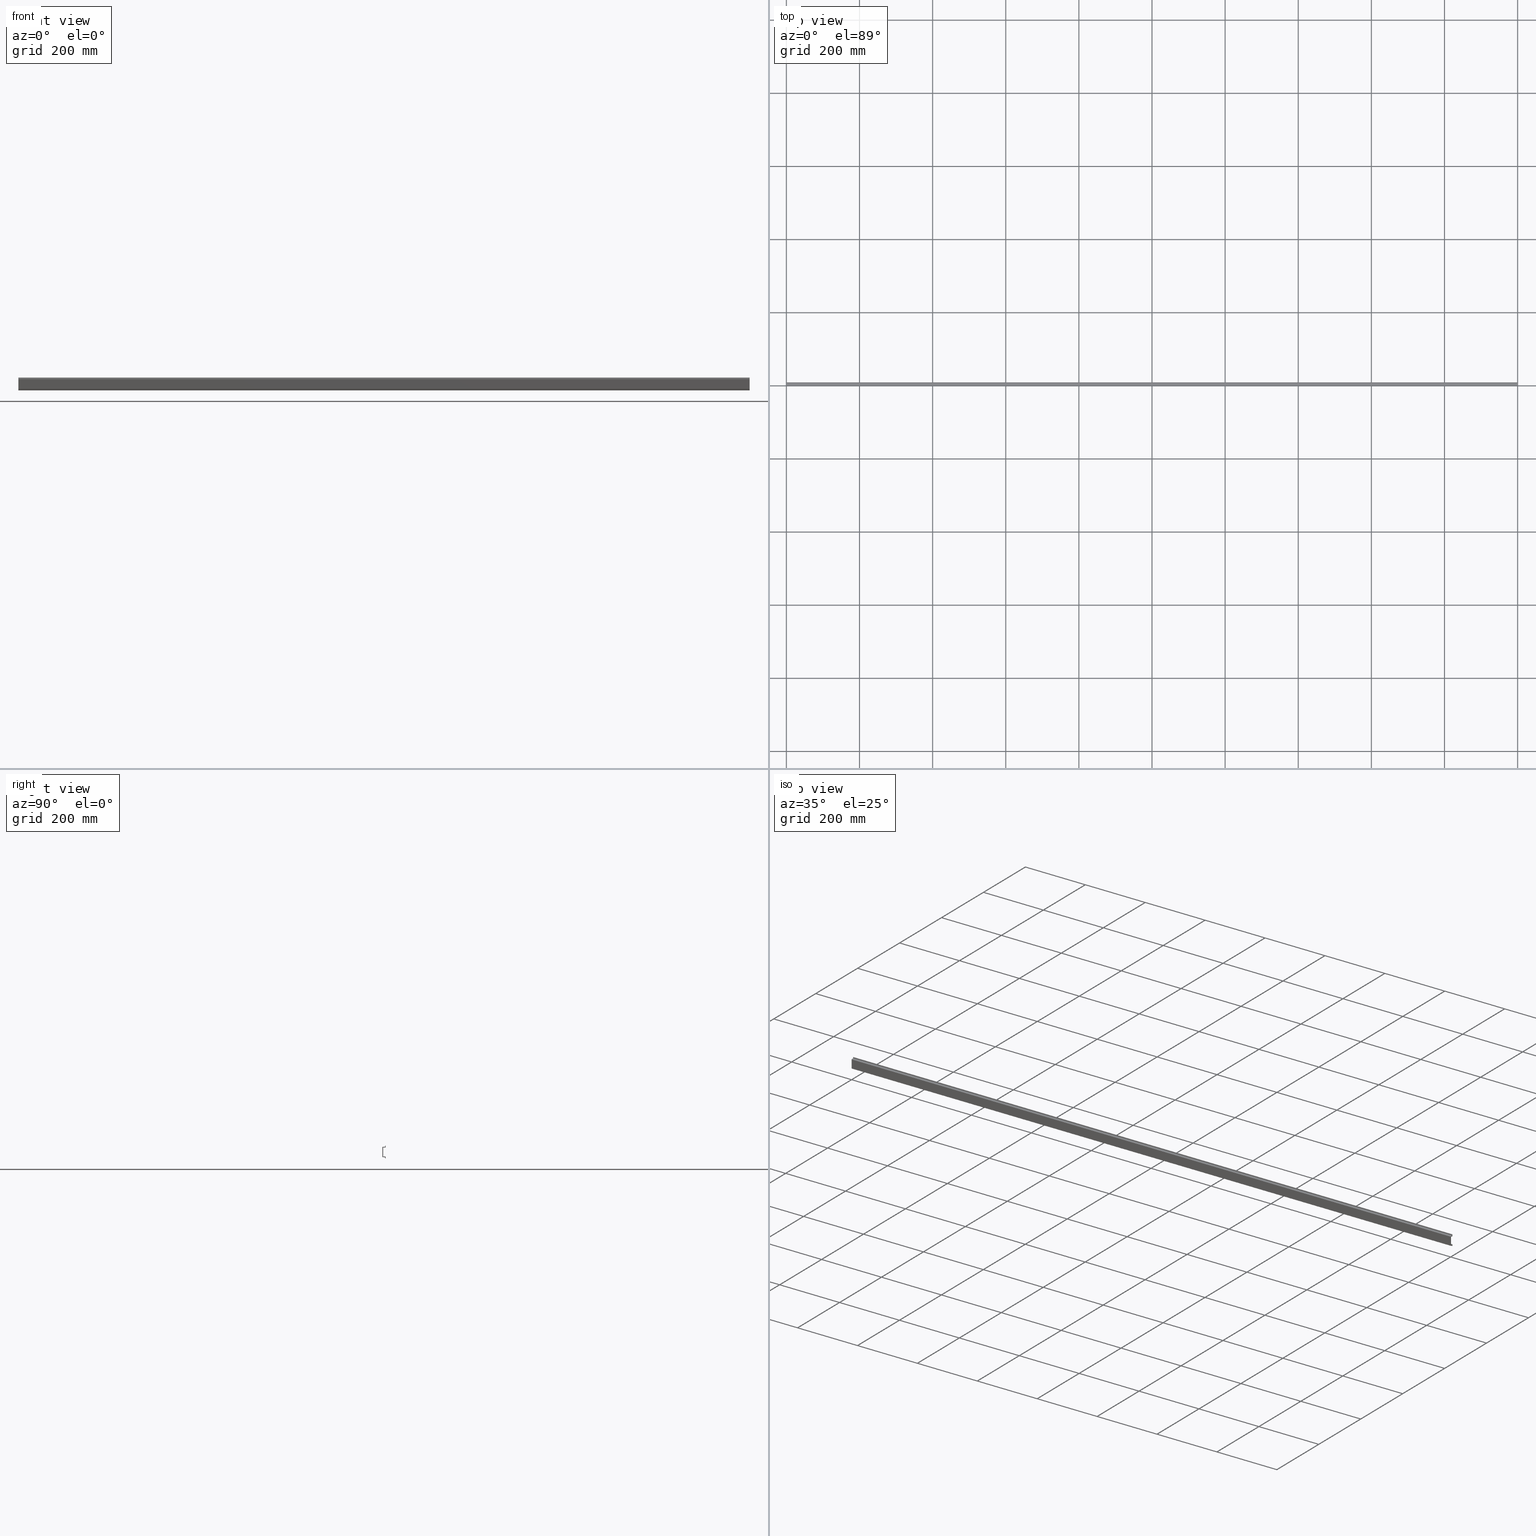
[diagram: canonical four-view strip — front | top / right | iso, engineering-drawing reading convention]
A machine part, canonical four-view strip (front | top / right | iso — engineering-drawing reading convention). The complete STEP part file that produces these views, byte-faithful:
ISO-10303-21;
HEADER;
FILE_DESCRIPTION (( 'STEP AP203' ),
    '1' );
FILE_NAME ('35x7,5 Al�minyum D�z Montaj Ray-2m.STEP',
    '2019-03-27T11:40:10',
    ( '' ),
    ( '' ),
    'SwSTEP 2.0',
    'SolidWorks 2011',
    '' );
FILE_SCHEMA (( 'CONFIG_CONTROL_DESIGN' ));
ENDSEC;

DATA;
#1 = PRODUCT ( '35x7,5 Al�minyum D�z Montaj Ray-2m', '35x7,5 Al�minyum D�z Montaj Ray-2m', '', ( #614 ) ) ;
#2 = EDGE_CURVE ( 'NONE', #101, #120, #145, .T. ) ;
#3 = EDGE_CURVE ( 'NONE', #166, #135, #171, .T. ) ;
#4 = EDGE_CURVE ( 'NONE', #142, #117, #306, .T. ) ;
#5 = EDGE_CURVE ( 'NONE', #166, #119, #288, .T. ) ;
#6 = EDGE_CURVE ( 'NONE', #134, #138, #294, .T. ) ;
#7 = EDGE_CURVE ( 'NONE', #134, #166, #675, .T. ) ;
#8 = EDGE_CURVE ( 'NONE', #135, #144, #670, .T. ) ;
#9 = EDGE_CURVE ( 'NONE', #146, #181, #290, .T. ) ;
#10 = EDGE_CURVE ( 'NONE', #128, #165, #704, .T. ) ;
#11 = EDGE_CURVE ( 'NONE', #101, #173, #720, .T. ) ;
#12 = EDGE_CURVE ( 'NONE', #170, #142, #307, .T. ) ;
#13 = EDGE_CURVE ( 'NONE', #100, #129, #345, .T. ) ;
#14 = EDGE_CURVE ( 'NONE', #173, #121, #328, .T. ) ;
#15 = EDGE_CURVE ( 'NONE', #167, #111, #683, .T. ) ;
#16 = EDGE_CURVE ( 'NONE', #165, #134, #308, .T. ) ;
#17 = EDGE_CURVE ( 'NONE', #138, #119, #715, .T. ) ;
#18 = EDGE_CURVE ( 'NONE', #148, #139, #309, .T. ) ;
#19 = EDGE_CURVE ( 'NONE', #137, #155, #680, .T. ) ;
#20 = EDGE_CURVE ( 'NONE', #146, #148, #685, .T. ) ;
#21 = EDGE_CURVE ( 'NONE', #111, #138, #338, .T. ) ;
#22 = EDGE_CURVE ( 'NONE', #130, #129, #310, .T. ) ;
#23 = EDGE_CURVE ( 'NONE', #117, #181, #340, .T. ) ;
#24 = EDGE_CURVE ( 'NONE', #120, #121, #721, .T. ) ;
#25 = EDGE_CURVE ( 'NONE', #169, #117, #339, .T. ) ;
#26 = EDGE_CURVE ( 'NONE', #181, #139, #709, .T. ) ;
#27 = EDGE_CURVE ( 'NONE', #130, #101, #356, .T. ) ;
#28 = EDGE_CURVE ( 'NONE', #173, #128, #378, .T. ) ;
#29 = EDGE_CURVE ( 'NONE', #165, #111, #393, .T. ) ;
#30 = EDGE_CURVE ( 'NONE', #155, #142, #361, .T. ) ;
#31 = EDGE_CURVE ( 'NONE', #170, #169, #350, .T. ) ;
#32 = EDGE_CURVE ( 'NONE', #169, #146, #365, .T. ) ;
#33 = EDGE_CURVE ( 'NONE', #125, #100, #367, .T. ) ;
#34 = EDGE_CURVE ( 'NONE', #121, #167, #387, .T. ) ;
#35 = EDGE_CURVE ( 'NONE', #119, #137, #391, .T. ) ;
#36 = EDGE_CURVE ( 'NONE', #129, #120, #369, .T. ) ;
#37 = EDGE_CURVE ( 'NONE', #144, #170, #392, .T. ) ;
#38 = EDGE_CURVE ( 'NONE', #149, #163, #699, .T. ) ;
#39 = EDGE_CURVE ( 'NONE', #125, #130, #371, .T. ) ;
#40 = EDGE_CURVE ( 'NONE', #135, #137, #399, .T. ) ;
#41 = EDGE_CURVE ( 'NONE', #183, #180, #418, .T. ) ;
#42 = EDGE_CURVE ( 'NONE', #180, #132, #724, .T. ) ;
#43 = EDGE_CURVE ( 'NONE', #148, #164, #403, .T. ) ;
#44 = EDGE_CURVE ( 'NONE', #128, #167, #438, .T. ) ;
#45 = EDGE_CURVE ( 'NONE', #144, #155, #409, .T. ) ;
#46 = APPROVAL ( #626, 'BEL�RT�LMEM��' ) ;
#47 = ADVANCED_FACE ( 'NONE', ( #405 ), #400, .F. ) ;
#48 = CC_DESIGN_PERSON_AND_ORGANIZATION_ASSIGNMENT ( #640, #643, ( #746 ) ) ;
#49 = EDGE_CURVE ( 'NONE', #139, #149, #410, .T. ) ;
#50 = EDGE_CURVE ( 'NONE', #163, #180, #426, .T. ) ;
#51 = EDGE_CURVE ( 'NONE', #176, #132, #412, .T. ) ;
#52 = EDGE_CURVE ( 'NONE', #132, #116, #420, .T. ) ;
#53 = EDGE_CURVE ( 'NONE', #168, #125, #429, .T. ) ;
#54 = EDGE_CURVE ( 'NONE', #116, #150, #679, .T. ) ;
#55 = EDGE_CURVE ( 'NONE', #168, #150, #432, .T. ) ;
#56 = ADVANCED_FACE ( 'NONE', ( #439 ), #489, .T. ) ;
#57 = EDGE_CURVE ( 'NONE', #160, #183, #459, .T. ) ;
#58 = ADVANCED_FACE ( 'NONE', ( #480 ), #483, .F. ) ;
#59 = EDGE_CURVE ( 'NONE', #176, #186, #457, .T. ) ;
#60 = ADVANCED_FACE ( 'NONE', ( #486 ), #477, .F. ) ;
#61 = ADVANCED_FACE ( 'NONE', ( #460 ), #488, .F. ) ;
#62 = ADVANCED_FACE ( 'NONE', ( #449 ), #479, .T. ) ;
#63 = EDGE_CURVE ( 'NONE', #150, #100, #470, .T. ) ;
#64 = ADVANCED_FACE ( 'NONE', ( #463 ), #458, .F. ) ;
#65 = EDGE_CURVE ( 'NONE', #186, #168, #773, .T. ) ;
#66 = ADVANCED_FACE ( 'NONE', ( #450 ), #487, .T. ) ;
#67 = ADVANCED_FACE ( 'NONE', ( #472 ), #490, .T. ) ;
#68 = ADVANCED_FACE ( 'NONE', ( #533 ), #512, .F. ) ;
#69 = EDGE_CURVE ( 'NONE', #183, #176, #774, .T. ) ;
#70 = EDGE_CURVE ( 'NONE', #186, #116, #504, .T. ) ;
#71 = EDGE_CURVE ( 'NONE', #160, #163, #493, .T. ) ;
#72 = EDGE_CURVE ( 'NONE', #164, #149, #494, .T. ) ;
#73 = ADVANCED_FACE ( 'NONE', ( #515 ), #508, .F. ) ;
#74 = ADVANCED_FACE ( 'NONE', ( #530 ), #527, .F. ) ;
#75 = ADVANCED_FACE ( 'NONE', ( #509 ), #529, .F. ) ;
#76 = EDGE_CURVE ( 'NONE', #164, #160, #780, .T. ) ;
#77 = ADVANCED_FACE ( 'NONE', ( #521 ), #516, .F. ) ;
#78 = ADVANCED_FACE ( 'NONE', ( #534 ), #540, .F. ) ;
#79 = ADVANCED_FACE ( 'NONE', ( #501 ), #520, .F. ) ;
#80 = PRODUCT_DEFINITION ( 'Bilinmeyen', '', #746, #99 ) ;
#81 = ADVANCED_FACE ( 'NONE', ( #577 ), #496, .F. ) ;
#82 = ADVANCED_FACE ( 'NONE', ( #581 ), #560, .F. ) ;
#83 = ADVANCED_FACE ( 'NONE', ( #561 ), #564, .F. ) ;
#84 = ADVANCED_FACE ( 'NONE', ( #570 ), #578, .F. ) ;
#85 = CC_DESIGN_PERSON_AND_ORGANIZATION_ASSIGNMENT ( #639, #611, ( #1 ) ) ;
#86 = APPROVAL ( #619, 'BEL�RT�LMEM��' ) ;
#87 = CC_DESIGN_PERSON_AND_ORGANIZATION_ASSIGNMENT ( #622, #629, ( #80 ) ) ;
#88 = ADVANCED_FACE ( 'NONE', ( #575 ), #554, .T. ) ;
#89 = ADVANCED_FACE ( 'NONE', ( #582 ), #579, .F. ) ;
#90 = CC_DESIGN_DATE_AND_TIME_ASSIGNMENT ( #631, #624, ( #80 ) ) ;
#91 = CC_DESIGN_DATE_AND_TIME_ASSIGNMENT ( #655, #650, ( #761 ) ) ;
#92 = PRODUCT_RELATED_PRODUCT_CATEGORY ( 'detail', '', ( #1 ) ) ;
#93 = CC_DESIGN_PERSON_AND_ORGANIZATION_ASSIGNMENT ( #649, #652, ( #761 ) ) ;
#94 = APPROVAL ( #660, 'BEL�RT�LMEM��' ) ;
#95 = CC_DESIGN_PERSON_AND_ORGANIZATION_ASSIGNMENT ( #644, #645, ( #746 ) ) ;
#96 = MANIFOLD_SOLID_BREP ( 'Y�kseklik-Ekstr�zyon1', #672 ) ;
#97 = UNCERTAINTY_MEASURE_WITH_UNIT (LENGTH_MEASURE( 1.000000000000000100E-005 ), #615, 'distance_accuracy_value', 'NONE');
#98 = PRODUCT_DEFINITION_SHAPE ( 'NONE', 'NONE',  #80 ) ;
#99 = DESIGN_CONTEXT ( 'detailed design', #662, 'design' ) ;
#100 = VERTEX_POINT ( 'NONE', #573 ) ;
#101 = VERTEX_POINT ( 'NONE', #556 ) ;
#102 = EDGE_LOOP ( 'NONE', ( #194, #197, #260, #200 ) ) ;
#103 = EDGE_LOOP ( 'NONE', ( #174, #151, #201, #172 ) ) ;
#104 = EDGE_LOOP ( 'NONE', ( #162, #184, #161, #152 ) ) ;
#105 = EDGE_LOOP ( 'NONE', ( #231, #233, #237, #256 ) ) ;
#106 = EDGE_LOOP ( 'NONE', ( #143, #179, #204, #187 ) ) ;
#107 = EDGE_LOOP ( 'NONE', ( #159, #213, #211, #217 ) ) ;
#108 = EDGE_LOOP ( 'NONE', ( #195, #154, #206, #157 ) ) ;
#109 = EDGE_LOOP ( 'NONE', ( #230, #255, #268, #238, #269, #227, #252, #270, #226, #247, #259, #234, #236, #242, #246, #257, #240, #258, #239, #232 ) ) ;
#110 = EDGE_LOOP ( 'NONE', ( #253, #212, #225, #207 ) ) ;
#111 = VERTEX_POINT ( 'NONE', #549 ) ;
#112 = EDGE_LOOP ( 'NONE', ( #182, #192, #175, #177 ) ) ;
#113 = EDGE_LOOP ( 'NONE', ( #249, #224, #245, #243 ) ) ;
#114 = EDGE_LOOP ( 'NONE', ( #215, #222, #223, #267 ) ) ;
#115 = EDGE_LOOP ( 'NONE', ( #199, #244, #241, #220 ) ) ;
#116 = VERTEX_POINT ( 'NONE', #596 ) ;
#117 = VERTEX_POINT ( 'NONE', #557 ) ;
#118 = EDGE_LOOP ( 'NONE', ( #208, #235, #221, #198 ) ) ;
#119 = VERTEX_POINT ( 'NONE', #558 ) ;
#120 = VERTEX_POINT ( 'NONE', #569 ) ;
#121 = VERTEX_POINT ( 'NONE', #580 ) ;
#122 = EDGE_LOOP ( 'NONE', ( #265, #251, #248, #254, #263, #264, #292, #277, #279, #301, #305, #291, #280, #284, #289, #276, #278, #286, #283, #296 ) ) ;
#123 = EDGE_LOOP ( 'NONE', ( #156, #147, #185, #141 ) ) ;
#124 = EDGE_LOOP ( 'NONE', ( #219, #228, #202, #266 ) ) ;
#125 = VERTEX_POINT ( 'NONE', #584 ) ;
#126 = EDGE_LOOP ( 'NONE', ( #214, #205, #216, #262 ) ) ;
#127 = EDGE_LOOP ( 'NONE', ( #196, #158, #210, #193 ) ) ;
#128 = VERTEX_POINT ( 'NONE', #565 ) ;
#129 = VERTEX_POINT ( 'NONE', #544 ) ;
#130 = VERTEX_POINT ( 'NONE', #567 ) ;
#131 = EDGE_LOOP ( 'NONE', ( #209, #140, #188, #153 ) ) ;
#132 = VERTEX_POINT ( 'NONE', #568 ) ;
#133 = EDGE_LOOP ( 'NONE', ( #191, #218, #178, #203 ) ) ;
#134 = VERTEX_POINT ( 'NONE', #585 ) ;
#135 = VERTEX_POINT ( 'NONE', #586 ) ;
#136 = EDGE_LOOP ( 'NONE', ( #229, #271, #261, #250 ) ) ;
#137 = VERTEX_POINT ( 'NONE', #587 ) ;
#138 = VERTEX_POINT ( 'NONE', #541 ) ;
#139 = VERTEX_POINT ( 'NONE', #572 ) ;
#140 = ORIENTED_EDGE ( 'NONE', *, *, #5, .F. ) ;
#141 = ORIENTED_EDGE ( 'NONE', *, *, #22, .T. ) ;
#142 = VERTEX_POINT ( 'NONE', #593 ) ;
#143 = ORIENTED_EDGE ( 'NONE', *, *, #21, .T. ) ;
#144 = VERTEX_POINT ( 'NONE', #595 ) ;
#145 = LINE ( 'NONE', #293, #671 ) ;
#146 = VERTEX_POINT ( 'NONE', #542 ) ;
#147 = ORIENTED_EDGE ( 'NONE', *, *, #2, .F. ) ;
#148 = VERTEX_POINT ( 'NONE', #588 ) ;
#149 = VERTEX_POINT ( 'NONE', #590 ) ;
#150 = VERTEX_POINT ( 'NONE', #546 ) ;
#151 = ORIENTED_EDGE ( 'NONE', *, *, #22, .F. ) ;
#152 = ORIENTED_EDGE ( 'NONE', *, *, #44, .T. ) ;
#153 = ORIENTED_EDGE ( 'NONE', *, *, #6, .T. ) ;
#154 = ORIENTED_EDGE ( 'NONE', *, *, #40, .F. ) ;
#155 = VERTEX_POINT ( 'NONE', #606 ) ;
#156 = ORIENTED_EDGE ( 'NONE', *, *, #36, .T. ) ;
#157 = ORIENTED_EDGE ( 'NONE', *, *, #5, .T. ) ;
#158 = ORIENTED_EDGE ( 'NONE', *, *, #45, .F. ) ;
#159 = ORIENTED_EDGE ( 'NONE', *, *, #30, .T. ) ;
#160 = VERTEX_POINT ( 'NONE', #543 ) ;
#161 = ORIENTED_EDGE ( 'NONE', *, *, #10, .F. ) ;
#162 = ORIENTED_EDGE ( 'NONE', *, *, #15, .T. ) ;
#163 = VERTEX_POINT ( 'NONE', #594 ) ;
#164 = VERTEX_POINT ( 'NONE', #548 ) ;
#165 = VERTEX_POINT ( 'NONE', #620 ) ;
#166 = VERTEX_POINT ( 'NONE', #634 ) ;
#167 = VERTEX_POINT ( 'NONE', #603 ) ;
#168 = VERTEX_POINT ( 'NONE', #600 ) ;
#169 = VERTEX_POINT ( 'NONE', #604 ) ;
#170 = VERTEX_POINT ( 'NONE', #637 ) ;
#171 = LINE ( 'NONE', #189, #667 ) ;
#172 = ORIENTED_EDGE ( 'NONE', *, *, #33, .T. ) ;
#173 = VERTEX_POINT ( 'NONE', #635 ) ;
#174 = ORIENTED_EDGE ( 'NONE', *, *, #13, .T. ) ;
#175 = ORIENTED_EDGE ( 'NONE', *, *, #11, .F. ) ;
#176 = VERTEX_POINT ( 'NONE', #613 ) ;
#177 = ORIENTED_EDGE ( 'NONE', *, *, #2, .T. ) ;
#178 = ORIENTED_EDGE ( 'NONE', *, *, #28, .F. ) ;
#179 = ORIENTED_EDGE ( 'NONE', *, *, #6, .F. ) ;
#180 = VERTEX_POINT ( 'NONE', #618 ) ;
#181 = VERTEX_POINT ( 'NONE', #607 ) ;
#182 = ORIENTED_EDGE ( 'NONE', *, *, #24, .T. ) ;
#183 = VERTEX_POINT ( 'NONE', #608 ) ;
#184 = ORIENTED_EDGE ( 'NONE', *, *, #29, .F. ) ;
#185 = ORIENTED_EDGE ( 'NONE', *, *, #27, .F. ) ;
#186 = VERTEX_POINT ( 'NONE', #630 ) ;
#187 = ORIENTED_EDGE ( 'NONE', *, *, #29, .T. ) ;
#188 = ORIENTED_EDGE ( 'NONE', *, *, #7, .F. ) ;
#189 = CARTESIAN_POINT ( 'NONE',  ( 2000.000000000000000, 6.494307887199402000, -0.9999999999998898700 ) ) ;
#190 = DIRECTION ( 'NONE',  ( -0.0000000000000000000, 1.000000000000000000, -0.0000000000000000000 ) ) ;
#191 = ORIENTED_EDGE ( 'NONE', *, *, #34, .T. ) ;
#192 = ORIENTED_EDGE ( 'NONE', *, *, #14, .F. ) ;
#193 = ORIENTED_EDGE ( 'NONE', *, *, #40, .T. ) ;
#194 = ORIENTED_EDGE ( 'NONE', *, *, #23, .T. ) ;
#195 = ORIENTED_EDGE ( 'NONE', *, *, #35, .T. ) ;
#196 = ORIENTED_EDGE ( 'NONE', *, *, #19, .T. ) ;
#197 = ORIENTED_EDGE ( 'NONE', *, *, #9, .F. ) ;
#198 = ORIENTED_EDGE ( 'NONE', *, *, #72, .T. ) ;
#199 = ORIENTED_EDGE ( 'NONE', *, *, #42, .T. ) ;
#200 = ORIENTED_EDGE ( 'NONE', *, *, #25, .T. ) ;
#201 = ORIENTED_EDGE ( 'NONE', *, *, #39, .F. ) ;
#202 = ORIENTED_EDGE ( 'NONE', *, *, #43, .F. ) ;
#203 = ORIENTED_EDGE ( 'NONE', *, *, #14, .T. ) ;
#204 = ORIENTED_EDGE ( 'NONE', *, *, #16, .F. ) ;
#205 = ORIENTED_EDGE ( 'NONE', *, *, #25, .F. ) ;
#206 = ORIENTED_EDGE ( 'NONE', *, *, #3, .F. ) ;
#207 = ORIENTED_EDGE ( 'NONE', *, *, #51, .T. ) ;
#208 = ORIENTED_EDGE ( 'NONE', *, *, #38, .T. ) ;
#209 = ORIENTED_EDGE ( 'NONE', *, *, #17, .T. ) ;
#210 = ORIENTED_EDGE ( 'NONE', *, *, #8, .F. ) ;
#211 = ORIENTED_EDGE ( 'NONE', *, *, #37, .F. ) ;
#212 = ORIENTED_EDGE ( 'NONE', *, *, #70, .F. ) ;
#213 = ORIENTED_EDGE ( 'NONE', *, *, #12, .F. ) ;
#214 = ORIENTED_EDGE ( 'NONE', *, *, #4, .T. ) ;
#215 = ORIENTED_EDGE ( 'NONE', *, *, #50, .T. ) ;
#216 = ORIENTED_EDGE ( 'NONE', *, *, #31, .F. ) ;
#217 = ORIENTED_EDGE ( 'NONE', *, *, #45, .T. ) ;
#218 = ORIENTED_EDGE ( 'NONE', *, *, #44, .F. ) ;
#219 = ORIENTED_EDGE ( 'NONE', *, *, #49, .T. ) ;
#220 = ORIENTED_EDGE ( 'NONE', *, *, #41, .T. ) ;
#221 = ORIENTED_EDGE ( 'NONE', *, *, #76, .F. ) ;
#222 = ORIENTED_EDGE ( 'NONE', *, *, #41, .F. ) ;
#223 = ORIENTED_EDGE ( 'NONE', *, *, #57, .F. ) ;
#224 = ORIENTED_EDGE ( 'NONE', *, *, #55, .F. ) ;
#225 = ORIENTED_EDGE ( 'NONE', *, *, #59, .F. ) ;
#226 = ORIENTED_EDGE ( 'NONE', *, *, #8, .T. ) ;
#227 = ORIENTED_EDGE ( 'NONE', *, *, #16, .T. ) ;
#228 = ORIENTED_EDGE ( 'NONE', *, *, #72, .F. ) ;
#229 = ORIENTED_EDGE ( 'NONE', *, *, #63, .T. ) ;
#230 = ORIENTED_EDGE ( 'NONE', *, *, #39, .T. ) ;
#231 = ORIENTED_EDGE ( 'NONE', *, *, #26, .T. ) ;
#232 = ORIENTED_EDGE ( 'NONE', *, *, #53, .T. ) ;
#233 = ORIENTED_EDGE ( 'NONE', *, *, #18, .F. ) ;
#234 = ORIENTED_EDGE ( 'NONE', *, *, #32, .T. ) ;
#235 = ORIENTED_EDGE ( 'NONE', *, *, #71, .F. ) ;
#236 = ORIENTED_EDGE ( 'NONE', *, *, #20, .T. ) ;
#237 = ORIENTED_EDGE ( 'NONE', *, *, #20, .F. ) ;
#238 = ORIENTED_EDGE ( 'NONE', *, *, #28, .T. ) ;
#239 = ORIENTED_EDGE ( 'NONE', *, *, #65, .T. ) ;
#240 = ORIENTED_EDGE ( 'NONE', *, *, #69, .T. ) ;
#241 = ORIENTED_EDGE ( 'NONE', *, *, #69, .F. ) ;
#242 = ORIENTED_EDGE ( 'NONE', *, *, #43, .T. ) ;
#243 = ORIENTED_EDGE ( 'NONE', *, *, #70, .T. ) ;
#244 = ORIENTED_EDGE ( 'NONE', *, *, #51, .F. ) ;
#245 = ORIENTED_EDGE ( 'NONE', *, *, #65, .F. ) ;
#246 = ORIENTED_EDGE ( 'NONE', *, *, #76, .T. ) ;
#247 = ORIENTED_EDGE ( 'NONE', *, *, #37, .T. ) ;
#248 = ORIENTED_EDGE ( 'NONE', *, *, #54, .F. ) ;
#249 = ORIENTED_EDGE ( 'NONE', *, *, #54, .T. ) ;
#250 = ORIENTED_EDGE ( 'NONE', *, *, #55, .T. ) ;
#251 = ORIENTED_EDGE ( 'NONE', *, *, #63, .F. ) ;
#252 = ORIENTED_EDGE ( 'NONE', *, *, #7, .T. ) ;
#253 = ORIENTED_EDGE ( 'NONE', *, *, #52, .T. ) ;
#254 = ORIENTED_EDGE ( 'NONE', *, *, #52, .F. ) ;
#255 = ORIENTED_EDGE ( 'NONE', *, *, #27, .T. ) ;
#256 = ORIENTED_EDGE ( 'NONE', *, *, #9, .T. ) ;
#257 = ORIENTED_EDGE ( 'NONE', *, *, #57, .T. ) ;
#258 = ORIENTED_EDGE ( 'NONE', *, *, #59, .T. ) ;
#259 = ORIENTED_EDGE ( 'NONE', *, *, #31, .T. ) ;
#260 = ORIENTED_EDGE ( 'NONE', *, *, #32, .F. ) ;
#261 = ORIENTED_EDGE ( 'NONE', *, *, #53, .F. ) ;
#262 = ORIENTED_EDGE ( 'NONE', *, *, #12, .T. ) ;
#263 = ORIENTED_EDGE ( 'NONE', *, *, #42, .F. ) ;
#264 = ORIENTED_EDGE ( 'NONE', *, *, #50, .F. ) ;
#265 = ORIENTED_EDGE ( 'NONE', *, *, #13, .F. ) ;
#266 = ORIENTED_EDGE ( 'NONE', *, *, #18, .T. ) ;
#267 = ORIENTED_EDGE ( 'NONE', *, *, #71, .T. ) ;
#268 = ORIENTED_EDGE ( 'NONE', *, *, #11, .T. ) ;
#269 = ORIENTED_EDGE ( 'NONE', *, *, #10, .T. ) ;
#270 = ORIENTED_EDGE ( 'NONE', *, *, #3, .T. ) ;
#271 = ORIENTED_EDGE ( 'NONE', *, *, #33, .F. ) ;
#272 = DIRECTION ( 'NONE',  ( 0.0000000000000000000, 0.0000000000000000000, -1.000000000000000000 ) ) ;
#273 = CARTESIAN_POINT ( 'NONE',  ( 2000.000000000000000, 8.599999999999663900, -0.1000000000002111000 ) ) ;
#274 = DIRECTION ( 'NONE',  ( 1.000000000000000000, 0.0000000000000000000, 0.0000000000000000000 ) ) ;
#275 = DIRECTION ( 'NONE',  ( -1.000000000000000000, -0.0000000000000000000, -0.0000000000000000000 ) ) ;
#276 = ORIENTED_EDGE ( 'NONE', *, *, #21, .F. ) ;
#277 = ORIENTED_EDGE ( 'NONE', *, *, #49, .F. ) ;
#278 = ORIENTED_EDGE ( 'NONE', *, *, #15, .F. ) ;
#279 = ORIENTED_EDGE ( 'NONE', *, *, #26, .F. ) ;
#280 = ORIENTED_EDGE ( 'NONE', *, *, #19, .F. ) ;
#281 = DIRECTION ( 'NONE',  ( 0.0000000000000000000, 0.0000000000000000000, -1.000000000000000000 ) ) ;
#282 = CARTESIAN_POINT ( 'NONE',  ( 2000.000000000000000, 7.599999999999829100, -4.350000000000076000 ) ) ;
#283 = ORIENTED_EDGE ( 'NONE', *, *, #24, .F. ) ;
#284 = ORIENTED_EDGE ( 'NONE', *, *, #35, .F. ) ;
#285 = CARTESIAN_POINT ( 'NONE',  ( 0.0000000000000000000, 8.599999999999607100, -4.350000000000076000 ) ) ;
#286 = ORIENTED_EDGE ( 'NONE', *, *, #34, .F. ) ;
#287 = DIRECTION ( 'NONE',  ( -0.0000000000000000000, 1.000000000000000000, -0.0000000000000000000 ) ) ;
#288 = LINE ( 'NONE', #303, #666 ) ;
#289 = ORIENTED_EDGE ( 'NONE', *, *, #17, .F. ) ;
#290 = LINE ( 'NONE', #273, #673 ) ;
#291 = ORIENTED_EDGE ( 'NONE', *, *, #30, .F. ) ;
#292 = ORIENTED_EDGE ( 'NONE', *, *, #38, .F. ) ;
#293 = CARTESIAN_POINT ( 'NONE',  ( 2000.000000000000000, 7.227162839129873900, 27.73653245076380400 ) ) ;
#294 = LINE ( 'NONE', #295, #674 ) ;
#295 = CARTESIAN_POINT ( 'NONE',  ( 2000.000000000000000, -5.551115123125782700E-014, 1.836970198720929400E-016 ) ) ;
#296 = ORIENTED_EDGE ( 'NONE', *, *, #36, .F. ) ;
#297 = DIRECTION ( 'NONE',  ( -1.000000000000000000, -0.0000000000000000000, -0.0000000000000000000 ) ) ;
#298 = DIRECTION ( 'NONE',  ( -1.000000000000000000, -0.0000000000000000000, -0.0000000000000000000 ) ) ;
#299 = CARTESIAN_POINT ( 'NONE',  ( 2000.000000000000000, 6.494307887199513000, -1.299999999999634800 ) ) ;
#300 = CARTESIAN_POINT ( 'NONE',  ( 2000.000000000000000, 0.9999999999998898700, 0.0000000000000000000 ) ) ;
#301 = ORIENTED_EDGE ( 'NONE', *, *, #23, .F. ) ;
#302 = DIRECTION ( 'NONE',  ( -1.000000000000000000, -0.0000000000000000000, -0.0000000000000000000 ) ) ;
#303 = CARTESIAN_POINT ( 'NONE',  ( 2000.000000000000000, 0.9999999999998898700, -0.9999999999998898700 ) ) ;
#304 = DIRECTION ( 'NONE',  ( -1.000000000000000000, -0.0000000000000000000, -0.0000000000000000000 ) ) ;
#305 = ORIENTED_EDGE ( 'NONE', *, *, #4, .F. ) ;
#306 = LINE ( 'NONE', #285, #669 ) ;
#307 = LINE ( 'NONE', #282, #728 ) ;
#308 = LINE ( 'NONE', #315, #730 ) ;
#309 = LINE ( 'NONE', #311, #716 ) ;
#310 = LINE ( 'NONE', #319, #713 ) ;
#311 = CARTESIAN_POINT ( 'NONE',  ( 2000.000000000000000, 7.599999999999607100, 0.8999999999999008800 ) ) ;
#312 = CARTESIAN_POINT ( 'NONE',  ( 0.0000000000000000000, 0.9999999999998898700, 0.0000000000000000000 ) ) ;
#313 = DIRECTION ( 'NONE',  ( -1.000000000000000000, -0.0000000000000000000, -0.0000000000000000000 ) ) ;
#314 = CARTESIAN_POINT ( 'NONE',  ( 0.0000000000000000000, 8.599999999999496900, 30.64999999999984200 ) ) ;
#315 = CARTESIAN_POINT ( 'NONE',  ( 2000.000000000000000, -1.110223024625156500E-013, 26.29999999999999000 ) ) ;
#316 = CARTESIAN_POINT ( 'NONE',  ( 0.0000000000000000000, -1.110223024625156500E-013, 26.29999999999999000 ) ) ;
#317 = DIRECTION ( 'NONE',  ( 0.0000000000000000000, 0.0000000000000000000, -1.000000000000000000 ) ) ;
#318 = DIRECTION ( 'NONE',  ( 0.0000000000000000000, 0.0000000000000000000, -1.000000000000000000 ) ) ;
#319 = CARTESIAN_POINT ( 'NONE',  ( 2000.000000000000000, 7.599999999999607100, 30.64999999999984200 ) ) ;
#320 = DIRECTION ( 'NONE',  ( 1.000000000000000000, 0.0000000000000000000, 0.0000000000000000000 ) ) ;
#321 = DIRECTION ( 'NONE',  ( -1.000000000000000000, -0.0000000000000000000, -0.0000000000000000000 ) ) ;
#322 = CARTESIAN_POINT ( 'NONE',  ( 0.0000000000000000000, 0.9999999999998898700, 26.29999999999999000 ) ) ;
#323 = DIRECTION ( 'NONE',  ( 0.0000000000000000000, 0.0000000000000000000, -1.000000000000000000 ) ) ;
#324 = DIRECTION ( 'NONE',  ( -1.000000000000000000, -0.0000000000000000000, -0.0000000000000000000 ) ) ;
#325 = DIRECTION ( 'NONE',  ( 1.000000000000000000, 0.0000000000000000000, 0.0000000000000000000 ) ) ;
#326 = DIRECTION ( 'NONE',  ( 0.0000000000000000000, -1.000000000000000000, 0.0000000000000000000 ) ) ;
#327 = DIRECTION ( 'NONE',  ( 0.0000000000000000000, 0.0000000000000000000, -1.000000000000000000 ) ) ;
#328 = LINE ( 'NONE', #330, #689 ) ;
#329 = CARTESIAN_POINT ( 'NONE',  ( 2000.000000000000000, 0.9999999999998898700, 26.29999999999999000 ) ) ;
#330 = CARTESIAN_POINT ( 'NONE',  ( 2000.000000000000000, 6.731207326816646100, 27.29999999999988000 ) ) ;
#331 = DIRECTION ( 'NONE',  ( -1.000000000000000000, -0.0000000000000000000, -0.0000000000000000000 ) ) ;
#332 = DIRECTION ( 'NONE',  ( 0.0000000000000000000, 0.0000000000000000000, -1.000000000000000000 ) ) ;
#333 = CARTESIAN_POINT ( 'NONE',  ( 2000.000000000000000, 7.599999999999607100, -0.1000000000002110300 ) ) ;
#334 = DIRECTION ( 'NONE',  ( 0.0000000000000000000, 0.0000000000000000000, -1.000000000000000000 ) ) ;
#335 = DIRECTION ( 'NONE',  ( -1.000000000000000000, -0.0000000000000000000, -0.0000000000000000000 ) ) ;
#336 = CARTESIAN_POINT ( 'NONE',  ( 0.0000000000000000000, 6.494307887199513000, -1.299999999999634800 ) ) ;
#337 = DIRECTION ( 'NONE',  ( 1.000000000000000000, 0.0000000000000000000, 0.0000000000000000000 ) ) ;
#338 = LINE ( 'NONE', #316, #708 ) ;
#339 = LINE ( 'NONE', #348, #686 ) ;
#340 = LINE ( 'NONE', #341, #682 ) ;
#341 = CARTESIAN_POINT ( 'NONE',  ( 0.0000000000000000000, 8.599999999999607100, -0.1000000000002110300 ) ) ;
#342 = DIRECTION ( 'NONE',  ( -1.000000000000000000, -0.0000000000000000000, -0.0000000000000000000 ) ) ;
#343 = DIRECTION ( 'NONE',  ( -0.0000000000000000000, -0.0000000000000000000, 1.000000000000000000 ) ) ;
#344 = DIRECTION ( 'NONE',  ( 0.0000000000000000000, 0.0000000000000000000, -1.000000000000000000 ) ) ;
#345 = LINE ( 'NONE', #314, #729 ) ;
#346 = DIRECTION ( 'NONE',  ( 1.000000000000000000, 0.0000000000000000000, 0.0000000000000000000 ) ) ;
#347 = CARTESIAN_POINT ( 'NONE',  ( 2000.000000000000000, 6.731207326816535100, 27.79999999999982700 ) ) ;
#348 = CARTESIAN_POINT ( 'NONE',  ( 2000.000000000000000, 8.599999999999607100, -4.350000000000076000 ) ) ;
#349 = DIRECTION ( 'NONE',  ( 0.0000000000000000000, 0.0000000000000000000, -1.000000000000000000 ) ) ;
#350 = LINE ( 'NONE', #381, #703 ) ;
#351 = DIRECTION ( 'NONE',  ( -1.000000000000000000, -0.0000000000000000000, -0.0000000000000000000 ) ) ;
#352 = CARTESIAN_POINT ( 'NONE',  ( 2000.000000000000000, 7.227162839129941400, 27.73653245076379600 ) ) ;
#353 = CARTESIAN_POINT ( 'NONE',  ( 0.0000000000000000000, 6.731207326816535100, 27.79999999999982700 ) ) ;
#354 = DIRECTION ( 'NONE',  ( -1.000000000000000000, -0.0000000000000000000, -0.0000000000000000000 ) ) ;
#355 = DIRECTION ( 'NONE',  ( 0.0000000000000000000, 0.0000000000000000000, -1.000000000000000000 ) ) ;
#356 = LINE ( 'NONE', #352, #687 ) ;
#357 = CARTESIAN_POINT ( 'NONE',  ( 0.0000000000000000000, 7.599999999999607100, -0.1000000000002110300 ) ) ;
#358 = DIRECTION ( 'NONE',  ( 1.000000000000000000, 0.0000000000000000000, 0.0000000000000000000 ) ) ;
#359 = DIRECTION ( 'NONE',  ( 0.0000000000000000000, 0.0000000000000000000, -1.000000000000000000 ) ) ;
#360 = DIRECTION ( 'NONE',  ( -0.0000000000000000000, -0.1269350984719558600, -0.9919110246266622500 ) ) ;
#361 = LINE ( 'NONE', #364, #731 ) ;
#362 = DIRECTION ( 'NONE',  ( 0.0000000000000000000, 0.2524218971470307300, -0.9676172723968365900 ) ) ;
#363 = CARTESIAN_POINT ( 'NONE',  ( 0.0000000000000000000, 7.227162839129941400, 27.73653245076379600 ) ) ;
#364 = CARTESIAN_POINT ( 'NONE',  ( 0.0000000000000000000, 6.784593068918543000, -1.224273430855515900 ) ) ;
#365 = LINE ( 'NONE', #376, #688 ) ;
#366 = DIRECTION ( 'NONE',  ( -1.000000000000000000, -0.0000000000000000000, -0.0000000000000000000 ) ) ;
#367 = LINE ( 'NONE', #385, #733 ) ;
#368 = CARTESIAN_POINT ( 'NONE',  ( 0.0000000000000000000, 6.494307887199402000, -0.9999999999998898700 ) ) ;
#369 = LINE ( 'NONE', #363, #719 ) ;
#370 = DIRECTION ( 'NONE',  ( -0.0000000000000000000, -0.1269350984719558600, -0.9919110246266622500 ) ) ;
#371 = LINE ( 'NONE', #379, #736 ) ;
#372 = CARTESIAN_POINT ( 'NONE',  ( 0.0000000000000000000, 2.199999999999979700, 1.199999999999867800 ) ) ;
#373 = DIRECTION ( 'NONE',  ( -0.0000000000000000000, 1.000000000000000000, -0.0000000000000000000 ) ) ;
#374 = DIRECTION ( 'NONE',  ( 0.0000000000000000000, 0.2524218971470307300, -0.9676172723968365900 ) ) ;
#375 = DIRECTION ( 'NONE',  ( -1.000000000000000000, -0.0000000000000000000, -0.0000000000000000000 ) ) ;
#376 = CARTESIAN_POINT ( 'NONE',  ( 2000.000000000000000, 8.599999999999607100, -0.1000000000002110300 ) ) ;
#377 = CARTESIAN_POINT ( 'NONE',  ( 2000.000000000000000, 6.784593068918543000, -1.224273430855515900 ) ) ;
#378 = LINE ( 'NONE', #382, #732 ) ;
#379 = CARTESIAN_POINT ( 'NONE',  ( 2000.000000000000000, 8.599999999999496900, 30.64999999999984200 ) ) ;
#380 = DIRECTION ( 'NONE',  ( -0.0000000000000000000, 1.000000000000000000, -0.0000000000000000000 ) ) ;
#381 = CARTESIAN_POINT ( 'NONE',  ( 2000.000000000000000, 8.599999999999607100, -4.350000000000076000 ) ) ;
#382 = CARTESIAN_POINT ( 'NONE',  ( 2000.000000000000000, 6.731207326816646100, 27.29999999999988000 ) ) ;
#383 = CARTESIAN_POINT ( 'NONE',  ( 2000.000000000000000, -1.110223024625156500E-013, 26.29999999999999000 ) ) ;
#384 = DIRECTION ( 'NONE',  ( -1.000000000000000000, -0.0000000000000000000, -0.0000000000000000000 ) ) ;
#385 = CARTESIAN_POINT ( 'NONE',  ( 2000.000000000000000, 8.599999999999496900, 30.64999999999984200 ) ) ;
#386 = DIRECTION ( 'NONE',  ( -0.0000000000000000000, -0.0000000000000000000, 1.000000000000000000 ) ) ;
#387 = LINE ( 'NONE', #388, #735 ) ;
#388 = CARTESIAN_POINT ( 'NONE',  ( 0.0000000000000000000, 6.731207326816646100, 27.29999999999988000 ) ) ;
#389 = DIRECTION ( 'NONE',  ( 0.0000000000000000000, -1.000000000000000000, 0.0000000000000000000 ) ) ;
#390 = DIRECTION ( 'NONE',  ( 0.0000000000000000000, -1.000000000000000000, 0.0000000000000000000 ) ) ;
#391 = LINE ( 'NONE', #368, #691 ) ;
#392 = LINE ( 'NONE', #377, #696 ) ;
#393 = LINE ( 'NONE', #383, #718 ) ;
#394 = CARTESIAN_POINT ( 'NONE',  ( 2000.000000000000000, 6.784593068918543000, -1.224273430855515900 ) ) ;
#395 = DIRECTION ( 'NONE',  ( 0.0000000000000000000, -1.000000000000000000, 0.0000000000000000000 ) ) ;
#396 = DIRECTION ( 'NONE',  ( -1.000000000000000000, -0.0000000000000000000, -0.0000000000000000000 ) ) ;
#397 = CARTESIAN_POINT ( 'NONE',  ( 0.0000000000000000000, 2.199999999999868700, 25.09999999999990200 ) ) ;
#398 = DIRECTION ( 'NONE',  ( -0.0000000000000000000, -0.0000000000000000000, 1.000000000000000000 ) ) ;
#399 = LINE ( 'NONE', #415, #710 ) ;
#400 = PLANE ( 'NONE',  #722 ) ;
#401 = DIRECTION ( 'NONE',  ( -1.000000000000000000, -0.0000000000000000000, -0.0000000000000000000 ) ) ;
#402 = CARTESIAN_POINT ( 'NONE',  ( 0.0000000000000000000, 7.599999999999607100, 0.8999999999999008800 ) ) ;
#403 = LINE ( 'NONE', #425, #717 ) ;
#404 = CARTESIAN_POINT ( 'NONE',  ( 2000.000000000000000, 6.784593068918543000, -1.224273430855515900 ) ) ;
#405 = FACE_OUTER_BOUND ( 'NONE', #107, .T. ) ;
#406 = DIRECTION ( 'NONE',  ( 0.0000000000000000000, 0.0000000000000000000, -1.000000000000000000 ) ) ;
#407 = DIRECTION ( 'NONE',  ( -1.000000000000000000, -0.0000000000000000000, -0.0000000000000000000 ) ) ;
#408 = CARTESIAN_POINT ( 'NONE',  ( 2000.000000000000000, 0.9999999999998900900, 27.29999999999993700 ) ) ;
#409 = LINE ( 'NONE', #394, #702 ) ;
#410 = LINE ( 'NONE', #402, #725 ) ;
#411 = DIRECTION ( 'NONE',  ( 0.0000000000000000000, -1.000000000000000000, 0.0000000000000000000 ) ) ;
#412 = LINE ( 'NONE', #419, #726 ) ;
#413 = CARTESIAN_POINT ( 'NONE',  ( 2000.000000000000000, 8.599999999999496900, 26.39999999999975700 ) ) ;
#414 = DIRECTION ( 'NONE',  ( -1.000000000000000000, -0.0000000000000000000, -0.0000000000000000000 ) ) ;
#415 = CARTESIAN_POINT ( 'NONE',  ( 2000.000000000000000, 6.494307887199402000, -0.9999999999997712900 ) ) ;
#416 = CARTESIAN_POINT ( 'NONE',  ( 2000.000000000000000, 1.899999999999901800, 25.09999999999967800 ) ) ;
#417 = DIRECTION ( 'NONE',  ( -0.0000000000000000000, 0.9676172723968365900, 0.2524218971470307300 ) ) ;
#418 = LINE ( 'NONE', #416, #714 ) ;
#419 = CARTESIAN_POINT ( 'NONE',  ( 2000.000000000000000, 2.199999999999868700, 25.39999999999986700 ) ) ;
#420 = LINE ( 'NONE', #421, #737 ) ;
#421 = CARTESIAN_POINT ( 'NONE',  ( 0.0000000000000000000, 7.599999999999496000, 25.39999999999986700 ) ) ;
#422 = DIRECTION ( 'NONE',  ( -1.000000000000000000, -0.0000000000000000000, -0.0000000000000000000 ) ) ;
#423 = DIRECTION ( 'NONE',  ( 0.0000000000000000000, -0.2524218971470307300, 0.9676172723968365900 ) ) ;
#424 = CARTESIAN_POINT ( 'NONE',  ( 0.0000000000000000000, 1.899999999999901800, 25.09999999999967800 ) ) ;
#425 = CARTESIAN_POINT ( 'NONE',  ( 2000.000000000000000, 7.599999999999607100, 0.8999999999999008800 ) ) ;
#426 = LINE ( 'NONE', #424, #693 ) ;
#427 = DIRECTION ( 'NONE',  ( -0.0000000000000000000, 1.000000000000000000, -0.0000000000000000000 ) ) ;
#428 = DIRECTION ( 'NONE',  ( -1.000000000000000000, -0.0000000000000000000, -0.0000000000000000000 ) ) ;
#429 = LINE ( 'NONE', #430, #707 ) ;
#430 = CARTESIAN_POINT ( 'NONE',  ( 2000.000000000000000, 8.599999999999496900, 30.64999999999984200 ) ) ;
#431 = DIRECTION ( 'NONE',  ( -0.0000000000000000000, -0.0000000000000000000, 1.000000000000000000 ) ) ;
#432 = LINE ( 'NONE', #413, #697 ) ;
#433 = CARTESIAN_POINT ( 'NONE',  ( 0.0000000000000000000, 7.599999999999496000, 26.39999999999975700 ) ) ;
#434 = DIRECTION ( 'NONE',  ( 1.000000000000000000, 0.0000000000000000000, 0.0000000000000000000 ) ) ;
#435 = DIRECTION ( 'NONE',  ( 0.0000000000000000000, 0.0000000000000000000, -1.000000000000000000 ) ) ;
#436 = DIRECTION ( 'NONE',  ( 0.0000000000000000000, -1.000000000000000000, 0.0000000000000000000 ) ) ;
#437 = DIRECTION ( 'NONE',  ( 0.0000000000000000000, 0.0000000000000000000, -1.000000000000000000 ) ) ;
#438 = LINE ( 'NONE', #408, #690 ) ;
#439 = FACE_OUTER_BOUND ( 'NONE', #109, .T. ) ;
#440 = CARTESIAN_POINT ( 'NONE',  ( 2000.000000000000000, 7.227162839129941400, 27.73653245076379600 ) ) ;
#441 = CARTESIAN_POINT ( 'NONE',  ( 2000.000000000000000, 7.599999999999496000, 26.39999999999975700 ) ) ;
#442 = DIRECTION ( 'NONE',  ( 0.0000000000000000000, 0.0000000000000000000, 1.000000000000000000 ) ) ;
#443 = DIRECTION ( 'NONE',  ( -1.000000000000000000, -0.0000000000000000000, -0.0000000000000000000 ) ) ;
#444 = DIRECTION ( 'NONE',  ( -1.000000000000000000, -0.0000000000000000000, -0.0000000000000000000 ) ) ;
#445 = DIRECTION ( 'NONE',  ( 0.0000000000000000000, 0.0000000000000000000, 1.000000000000000000 ) ) ;
#446 = CARTESIAN_POINT ( 'NONE',  ( 2000.000000000000000, 1.899999999999901800, 25.09999999999967800 ) ) ;
#447 = CARTESIAN_POINT ( 'NONE',  ( 2000.000000000000000, -1.110223024625156500E-013, 26.29999999999999000 ) ) ;
#448 = DIRECTION ( 'NONE',  ( -0.0000000000000000000, 1.000000000000000000, -0.0000000000000000000 ) ) ;
#449 = FACE_OUTER_BOUND ( 'NONE', #104, .T. ) ;
#450 = FACE_OUTER_BOUND ( 'NONE', #113, .T. ) ;
#451 = DIRECTION ( 'NONE',  ( 0.0000000000000000000, -0.0000000000000000000, 1.000000000000000000 ) ) ;
#452 = DIRECTION ( 'NONE',  ( -1.000000000000000000, -0.0000000000000000000, -0.0000000000000000000 ) ) ;
#453 = DIRECTION ( 'NONE',  ( 0.0000000000000000000, 0.1269350984719558600, 0.9919110246266622500 ) ) ;
#454 = DIRECTION ( 'NONE',  ( 1.000000000000000000, 0.0000000000000000000, 0.0000000000000000000 ) ) ;
#455 = DIRECTION ( 'NONE',  ( 0.0000000000000000000, 0.9919110246266622500, -0.1269350984719558600 ) ) ;
#456 = DIRECTION ( 'NONE',  ( 0.0000000000000000000, 0.0000000000000000000, -1.000000000000000000 ) ) ;
#457 = LINE ( 'NONE', #464, #700 ) ;
#458 = PLANE ( 'NONE',  #743 ) ;
#459 = LINE ( 'NONE', #446, #727 ) ;
#460 = FACE_OUTER_BOUND ( 'NONE', #136, .T. ) ;
#461 = DIRECTION ( 'NONE',  ( -0.0000000000000000000, 1.000000000000000000, 0.0000000000000000000 ) ) ;
#462 = DIRECTION ( 'NONE',  ( 0.0000000000000000000, -1.000000000000000000, 0.0000000000000000000 ) ) ;
#463 = FACE_OUTER_BOUND ( 'NONE', #106, .T. ) ;
#464 = CARTESIAN_POINT ( 'NONE',  ( 2000.000000000000000, 7.599999999999496000, 25.39999999999986700 ) ) ;
#465 = DIRECTION ( 'NONE',  ( 0.0000000000000000000, 0.0000000000000000000, -1.000000000000000000 ) ) ;
#466 = DIRECTION ( 'NONE',  ( -1.000000000000000000, -0.0000000000000000000, -0.0000000000000000000 ) ) ;
#467 = CARTESIAN_POINT ( 'NONE',  ( 2000.000000000000000, 0.9999999999998898700, 26.29999999999999000 ) ) ;
#468 = DIRECTION ( 'NONE',  ( -0.0000000000000000000, -0.0000000000000000000, 1.000000000000000000 ) ) ;
#469 = DIRECTION ( 'NONE',  ( 0.0000000000000000000, 0.0000000000000000000, 1.000000000000000000 ) ) ;
#470 = LINE ( 'NONE', #484, #712 ) ;
#471 = DIRECTION ( 'NONE',  ( -1.000000000000000000, 0.0000000000000000000, -0.0000000000000000000 ) ) ;
#472 = FACE_OUTER_BOUND ( 'NONE', #131, .T. ) ;
#473 = CARTESIAN_POINT ( 'NONE',  ( 2000.000000000000000, 8.599999999999496900, 30.64999999999984200 ) ) ;
#474 = CARTESIAN_POINT ( 'NONE',  ( 2000.000000000000000, 7.599999999999496000, 26.39999999999975700 ) ) ;
#475 = CARTESIAN_POINT ( 'NONE',  ( 2000.000000000000000, 6.731207326816646100, 27.29999999999988000 ) ) ;
#476 = DIRECTION ( 'NONE',  ( -0.0000000000000000000, -0.0000000000000000000, 1.000000000000000000 ) ) ;
#477 = PLANE ( 'NONE',  #694 ) ;
#478 = DIRECTION ( 'NONE',  ( 0.0000000000000000000, -0.0000000000000000000, -1.000000000000000000 ) ) ;
#479 = CYLINDRICAL_SURFACE ( 'NONE', #750, 0.9999999999999453800 ) ;
#480 = FACE_OUTER_BOUND ( 'NONE', #123, .T. ) ;
#481 = DIRECTION ( 'NONE',  ( 1.000000000000000000, 0.0000000000000000000, 0.0000000000000000000 ) ) ;
#482 = DIRECTION ( 'NONE',  ( 0.0000000000000000000, 0.0000000000000000000, -1.000000000000000000 ) ) ;
#483 = PLANE ( 'NONE',  #706 ) ;
#484 = CARTESIAN_POINT ( 'NONE',  ( 0.0000000000000000000, 8.599999999999496900, 30.64999999999984200 ) ) ;
#485 = CARTESIAN_POINT ( 'NONE',  ( 2000.000000000000000, 6.731207326816535100, 27.79999999999982700 ) ) ;
#486 = FACE_OUTER_BOUND ( 'NONE', #133, .T. ) ;
#487 = CYLINDRICAL_SURFACE ( 'NONE', #771, 0.9999999999999453800 ) ;
#488 = PLANE ( 'NONE',  #742 ) ;
#489 = PLANE ( 'NONE',  #711 ) ;
#490 = CYLINDRICAL_SURFACE ( 'NONE', #770, 0.9999999999999453800 ) ;
#491 = CARTESIAN_POINT ( 'NONE',  ( 2000.000000000000000, 0.9999999999998898700, 0.0000000000000000000 ) ) ;
#492 = CARTESIAN_POINT ( 'NONE',  ( 2000.000000000000000, 7.599999999999496000, 25.39999999999981000 ) ) ;
#493 = LINE ( 'NONE', #503, #747 ) ;
#494 = LINE ( 'NONE', #526, #762 ) ;
#495 = CARTESIAN_POINT ( 'NONE',  ( 2000.000000000000000, 2.199999999999868700, 25.09999999999990200 ) ) ;
#496 = PLANE ( 'NONE',  #777 ) ;
#497 = DIRECTION ( 'NONE',  ( 0.0000000000000000000, 0.0000000000000000000, -1.000000000000000000 ) ) ;
#498 = DIRECTION ( 'NONE',  ( -1.000000000000000000, -0.0000000000000000000, -0.0000000000000000000 ) ) ;
#499 = DIRECTION ( 'NONE',  ( 0.0000000000000000000, 0.0000000000000000000, 1.000000000000000000 ) ) ;
#500 = DIRECTION ( 'NONE',  ( -1.000000000000000000, -0.0000000000000000000, -0.0000000000000000000 ) ) ;
#501 = FACE_OUTER_BOUND ( 'NONE', #114, .T. ) ;
#502 = CARTESIAN_POINT ( 'NONE',  ( 0.0000000000000000000, 6.731207326816535100, 27.79999999999982700 ) ) ;
#503 = CARTESIAN_POINT ( 'NONE',  ( 2000.000000000000000, 1.899999999999901800, 1.199999999999867800 ) ) ;
#504 = LINE ( 'NONE', #492, #741 ) ;
#505 = DIRECTION ( 'NONE',  ( -1.000000000000000000, -0.0000000000000000000, -0.0000000000000000000 ) ) ;
#506 = CARTESIAN_POINT ( 'NONE',  ( 2000.000000000000000, 2.199999999999979700, 1.199999999999867800 ) ) ;
#507 = DIRECTION ( 'NONE',  ( 0.0000000000000000000, -1.000000000000000000, 0.0000000000000000000 ) ) ;
#508 = CYLINDRICAL_SURFACE ( 'NONE', #738, 0.2999999999999669600 ) ;
#509 = FACE_OUTER_BOUND ( 'NONE', #102, .T. ) ;
#510 = DIRECTION ( 'NONE',  ( -1.000000000000000000, -0.0000000000000000000, -0.0000000000000000000 ) ) ;
#511 = DIRECTION ( 'NONE',  ( 0.0000000000000000000, -0.0000000000000000000, -1.000000000000000000 ) ) ;
#512 = PLANE ( 'NONE',  #752 ) ;
#513 = CARTESIAN_POINT ( 'NONE',  ( 2000.000000000000000, 2.199999999999979700, 1.199999999999867800 ) ) ;
#514 = CARTESIAN_POINT ( 'NONE',  ( 2000.000000000000000, 7.599999999999607100, 0.8999999999999008800 ) ) ;
#515 = FACE_OUTER_BOUND ( 'NONE', #115, .T. ) ;
#516 = CYLINDRICAL_SURFACE ( 'NONE', #749, 0.5000000000000143200 ) ;
#517 = DIRECTION ( 'NONE',  ( 0.0000000000000000000, 0.0000000000000000000, 1.000000000000000000 ) ) ;
#518 = DIRECTION ( 'NONE',  ( -1.000000000000000000, -0.0000000000000000000, -0.0000000000000000000 ) ) ;
#519 = DIRECTION ( 'NONE',  ( 0.0000000000000000000, 0.0000000000000000000, -1.000000000000000000 ) ) ;
#520 = PLANE ( 'NONE',  #768 ) ;
#521 = FACE_OUTER_BOUND ( 'NONE', #112, .T. ) ;
#522 = DIRECTION ( 'NONE',  ( -1.000000000000000000, -0.0000000000000000000, -0.0000000000000000000 ) ) ;
#523 = CARTESIAN_POINT ( 'NONE',  ( 2000.000000000000000, 8.599999999999607100, -0.1000000000002110300 ) ) ;
#524 = DIRECTION ( 'NONE',  ( -1.000000000000000000, -0.0000000000000000000, -0.0000000000000000000 ) ) ;
#525 = DIRECTION ( 'NONE',  ( -1.000000000000000000, -0.0000000000000000000, -0.0000000000000000000 ) ) ;
#526 = CARTESIAN_POINT ( 'NONE',  ( 2000.000000000000000, 2.199999999999979700, 0.8999999999998453700 ) ) ;
#527 = CYLINDRICAL_SURFACE ( 'NONE', #755, 0.3000000000000224700 ) ;
#528 = DIRECTION ( 'NONE',  ( 0.0000000000000000000, 0.0000000000000000000, -1.000000000000000000 ) ) ;
#529 = PLANE ( 'NONE',  #778 ) ;
#530 = FACE_OUTER_BOUND ( 'NONE', #118, .T. ) ;
#531 = CARTESIAN_POINT ( 'NONE',  ( 2000.000000000000000, 6.731207326816535100, 27.79999999999982700 ) ) ;
#532 = DIRECTION ( 'NONE',  ( 0.0000000000000000000, 0.0000000000000000000, 1.000000000000000000 ) ) ;
#533 = FACE_OUTER_BOUND ( 'NONE', #122, .T. ) ;
#534 = FACE_OUTER_BOUND ( 'NONE', #124, .T. ) ;
#535 = CARTESIAN_POINT ( 'NONE',  ( 2000.000000000000000, 2.199999999999868700, 25.09999999999990200 ) ) ;
#536 = CARTESIAN_POINT ( 'NONE',  ( 2000.000000000000000, 1.899999999999901800, 25.09999999999967800 ) ) ;
#537 = DIRECTION ( 'NONE',  ( 0.0000000000000000000, 0.0000000000000000000, -1.000000000000000000 ) ) ;
#538 = DIRECTION ( 'NONE',  ( -1.000000000000000000, 0.0000000000000000000, -0.0000000000000000000 ) ) ;
#539 = DIRECTION ( 'NONE',  ( 1.000000000000000000, 0.0000000000000000000, 0.0000000000000000000 ) ) ;
#540 = PLANE ( 'NONE',  #745 ) ;
#541 = CARTESIAN_POINT ( 'NONE',  ( 0.0000000000000000000, -5.551115123125782700E-014, 1.836970198720929400E-016 ) ) ;
#542 = CARTESIAN_POINT ( 'NONE',  ( 2000.000000000000000, 8.599999999999663900, -0.1000000000002111000 ) ) ;
#543 = CARTESIAN_POINT ( 'NONE',  ( 2000.000000000000000, 1.899999999999901800, 1.199999999999867800 ) ) ;
#544 = CARTESIAN_POINT ( 'NONE',  ( 0.0000000000000000000, 7.599999999999607100, 30.64999999999984200 ) ) ;
#545 = DIRECTION ( 'NONE',  ( 1.000000000000000000, 0.0000000000000000000, 0.0000000000000000000 ) ) ;
#546 = CARTESIAN_POINT ( 'NONE',  ( 0.0000000000000000000, 8.599999999999496900, 26.39999999999975700 ) ) ;
#547 = DIRECTION ( 'NONE',  ( 0.0000000000000000000, 0.0000000000000000000, 1.000000000000000000 ) ) ;
#548 = CARTESIAN_POINT ( 'NONE',  ( 2000.000000000000000, 2.199999999999979700, 0.8999999999998453700 ) ) ;
#549 = CARTESIAN_POINT ( 'NONE',  ( 0.0000000000000000000, -1.110223024625156500E-013, 26.29999999999999000 ) ) ;
#550 = DIRECTION ( 'NONE',  ( 0.0000000000000000000, 0.0000000000000000000, -1.000000000000000000 ) ) ;
#551 = DIRECTION ( 'NONE',  ( 0.0000000000000000000, -1.000000000000000000, 0.0000000000000000000 ) ) ;
#552 = CARTESIAN_POINT ( 'NONE',  ( 2000.000000000000000, 7.599999999999496000, 25.39999999999986700 ) ) ;
#553 = CARTESIAN_POINT ( 'NONE',  ( 2000.000000000000000, 8.599999999999607100, -4.350000000000076000 ) ) ;
#554 = CYLINDRICAL_SURFACE ( 'NONE', #748, 1.000000000000056400 ) ;
#555 = DIRECTION ( 'NONE',  ( -1.000000000000000000, -0.0000000000000000000, -0.0000000000000000000 ) ) ;
#556 = CARTESIAN_POINT ( 'NONE',  ( 2000.000000000000000, 7.227162839129873900, 27.73653245076380400 ) ) ;
#557 = CARTESIAN_POINT ( 'NONE',  ( 0.0000000000000000000, 8.599999999999607100, -4.350000000000076000 ) ) ;
#558 = CARTESIAN_POINT ( 'NONE',  ( 0.0000000000000000000, 0.9999999999998898700, -0.9999999999998898700 ) ) ;
#559 = DIRECTION ( 'NONE',  ( -1.000000000000000000, 0.0000000000000000000, -0.0000000000000000000 ) ) ;
#560 = CYLINDRICAL_SURFACE ( 'NONE', #757, 0.2999999999998635400 ) ;
#561 = FACE_OUTER_BOUND ( 'NONE', #126, .T. ) ;
#562 = DIRECTION ( 'NONE',  ( -0.0000000000000000000, 0.0000000000000000000, 1.000000000000000000 ) ) ;
#563 = DIRECTION ( 'NONE',  ( 1.000000000000000000, 0.0000000000000000000, 0.0000000000000000000 ) ) ;
#564 = PLANE ( 'NONE',  #740 ) ;
#565 = CARTESIAN_POINT ( 'NONE',  ( 2000.000000000000000, 0.9999999999998900900, 27.29999999999993700 ) ) ;
#566 = CARTESIAN_POINT ( 'NONE',  ( 2000.000000000000000, 6.494307887199402000, -0.9999999999998898700 ) ) ;
#567 = CARTESIAN_POINT ( 'NONE',  ( 2000.000000000000000, 7.599999999999607100, 30.64999999999984200 ) ) ;
#568 = CARTESIAN_POINT ( 'NONE',  ( 0.0000000000000000000, 2.199999999999868700, 25.39999999999986700 ) ) ;
#569 = CARTESIAN_POINT ( 'NONE',  ( 0.0000000000000000000, 7.227162839129873900, 27.73653245076380400 ) ) ;
#570 = FACE_OUTER_BOUND ( 'NONE', #110, .T. ) ;
#571 = DIRECTION ( 'NONE',  ( -0.0000000000000000000, 0.0000000000000000000, 1.000000000000000000 ) ) ;
#572 = CARTESIAN_POINT ( 'NONE',  ( 0.0000000000000000000, 7.599999999999607100, 0.8999999999999008800 ) ) ;
#573 = CARTESIAN_POINT ( 'NONE',  ( 0.0000000000000000000, 8.599999999999496900, 30.64999999999984200 ) ) ;
#574 = DIRECTION ( 'NONE',  ( -1.000000000000000000, -0.0000000000000000000, -0.0000000000000000000 ) ) ;
#575 = FACE_OUTER_BOUND ( 'NONE', #105, .T. ) ;
#576 = CARTESIAN_POINT ( 'NONE',  ( 2000.000000000000000, 8.599999999999496900, 30.64999999999984200 ) ) ;
#577 = FACE_OUTER_BOUND ( 'NONE', #103, .T. ) ;
#578 = PLANE ( 'NONE',  #779 ) ;
#579 = PLANE ( 'NONE',  #772 ) ;
#580 = CARTESIAN_POINT ( 'NONE',  ( 0.0000000000000000000, 6.731207326816646100, 27.29999999999988000 ) ) ;
#581 = FACE_OUTER_BOUND ( 'NONE', #127, .T. ) ;
#582 = FACE_OUTER_BOUND ( 'NONE', #108, .T. ) ;
#583 = CARTESIAN_POINT ( 'NONE',  ( 2000.000000000000000, 6.494307887199513000, -1.299999999999634800 ) ) ;
#584 = CARTESIAN_POINT ( 'NONE',  ( 2000.000000000000000, 8.599999999999496900, 30.64999999999984200 ) ) ;
#585 = CARTESIAN_POINT ( 'NONE',  ( 2000.000000000000000, -5.551115123125782700E-014, 1.836970198720929400E-016 ) ) ;
#586 = CARTESIAN_POINT ( 'NONE',  ( 2000.000000000000000, 6.494307887199402000, -0.9999999999997712900 ) ) ;
#587 = CARTESIAN_POINT ( 'NONE',  ( 0.0000000000000000000, 6.494307887199402000, -0.9999999999997712900 ) ) ;
#588 = CARTESIAN_POINT ( 'NONE',  ( 2000.000000000000000, 7.599999999999607100, 0.8999999999999008800 ) ) ;
#589 = CARTESIAN_POINT ( 'NONE',  ( 2000.000000000000000, 7.599999999999607100, -0.1000000000002110300 ) ) ;
#590 = CARTESIAN_POINT ( 'NONE',  ( 0.0000000000000000000, 2.199999999999979700, 0.8999999999998453700 ) ) ;
#591 = DIRECTION ( 'NONE',  ( 0.0000000000000000000, -0.0000000000000000000, -1.000000000000000000 ) ) ;
#592 = DIRECTION ( 'NONE',  ( -0.0000000000000000000, 0.0000000000000000000, 1.000000000000000000 ) ) ;
#593 = CARTESIAN_POINT ( 'NONE',  ( 0.0000000000000000000, 7.599999999999829100, -4.350000000000076000 ) ) ;
#594 = CARTESIAN_POINT ( 'NONE',  ( 0.0000000000000000000, 1.899999999999901800, 1.199999999999867800 ) ) ;
#595 = CARTESIAN_POINT ( 'NONE',  ( 2000.000000000000000, 6.784593068918543000, -1.224273430855515900 ) ) ;
#596 = CARTESIAN_POINT ( 'NONE',  ( 0.0000000000000000000, 7.599999999999496000, 25.39999999999981000 ) ) ;
#597 = DIRECTION ( 'NONE',  ( 1.000000000000000000, 0.0000000000000000000, 0.0000000000000000000 ) ) ;
#598 = DIRECTION ( 'NONE',  ( 0.0000000000000000000, 0.0000000000000000000, 1.000000000000000000 ) ) ;
#599 = DATE_AND_TIME ( #621, #781 ) ;
#600 = CARTESIAN_POINT ( 'NONE',  ( 2000.000000000000000, 8.599999999999496900, 26.39999999999975700 ) ) ;
#601 = PERSON_AND_ORGANIZATION ( #664, #754 ) ;
#602 = APPROVAL_DATE_TIME ( #599, #86 ) ;
#603 = CARTESIAN_POINT ( 'NONE',  ( 0.0000000000000000000, 0.9999999999998900900, 27.29999999999993700 ) ) ;
#604 = CARTESIAN_POINT ( 'NONE',  ( 2000.000000000000000, 8.599999999999607100, -4.350000000000076000 ) ) ;
#605 =( NAMED_UNIT ( * ) SI_UNIT ( $, .STERADIAN. ) SOLID_ANGLE_UNIT ( ) );
#606 = CARTESIAN_POINT ( 'NONE',  ( 0.0000000000000000000, 6.784593068918543000, -1.224273430855515900 ) ) ;
#607 = CARTESIAN_POINT ( 'NONE',  ( 0.0000000000000000000, 8.599999999999663900, -0.1000000000002111000 ) ) ;
#608 = CARTESIAN_POINT ( 'NONE',  ( 2000.000000000000000, 1.899999999999901800, 25.09999999999967800 ) ) ;
#609 = DIRECTION ( 'NONE',  ( 0.0000000000000000000, 0.0000000000000000000, 1.000000000000000000 ) ) ;
#610 = SHAPE_DEFINITION_REPRESENTATION ( #98, #665 ) ;
#611 = PERSON_AND_ORGANIZATION_ROLE ( 'design_owner' ) ;
#612 = APPLICATION_PROTOCOL_DEFINITION ( 'international standard', 'config_control_design', 1994, #662 ) ;
#613 = CARTESIAN_POINT ( 'NONE',  ( 2000.000000000000000, 2.199999999999868700, 25.39999999999986700 ) ) ;
#614 = MECHANICAL_CONTEXT ( 'NONE', #663, 'mechanical' ) ;
#615 =( LENGTH_UNIT ( ) NAMED_UNIT ( * ) SI_UNIT ( .MILLI., .METRE. ) );
#616 = PERSON_AND_ORGANIZATION ( #664, #754 ) ;
#617 = CARTESIAN_POINT ( 'NONE',  ( 0.0000000000000000000, 0.0000000000000000000, 0.0000000000000000000 ) ) ;
#618 = CARTESIAN_POINT ( 'NONE',  ( 0.0000000000000000000, 1.899999999999901800, 25.09999999999967800 ) ) ;
#619 = APPROVAL_STATUS ( 'not_yet_approved' ) ;
#620 = CARTESIAN_POINT ( 'NONE',  ( 2000.000000000000000, -1.110223024625156500E-013, 26.29999999999999000 ) ) ;
#621 = CALENDAR_DATE ( 2019, 27, 3 ) ;
#622 = PERSON_AND_ORGANIZATION ( #664, #754 ) ;
#623 = COORDINATED_UNIVERSAL_TIME_OFFSET ( 3, 0, .AHEAD. ) ;
#624 = DATE_TIME_ROLE ( 'creation_date' ) ;
#625 = COORDINATED_UNIVERSAL_TIME_OFFSET ( 3, 0, .AHEAD. ) ;
#626 = APPROVAL_STATUS ( 'not_yet_approved' ) ;
#627 = APPROVAL_ROLE ( '' ) ;
#628 = APPROVAL_ROLE ( '' ) ;
#629 = PERSON_AND_ORGANIZATION_ROLE ( 'creator' ) ;
#630 = CARTESIAN_POINT ( 'NONE',  ( 2000.000000000000000, 7.599999999999496000, 25.39999999999981000 ) ) ;
#631 = DATE_AND_TIME ( #632, #739 ) ;
#632 = CALENDAR_DATE ( 2019, 27, 3 ) ;
#633 = COORDINATED_UNIVERSAL_TIME_OFFSET ( 3, 0, .AHEAD. ) ;
#634 = CARTESIAN_POINT ( 'NONE',  ( 2000.000000000000000, 0.9999999999998898700, -0.9999999999998898700 ) ) ;
#635 = CARTESIAN_POINT ( 'NONE',  ( 2000.000000000000000, 6.731207326816646100, 27.29999999999988000 ) ) ;
#636 = DATE_AND_TIME ( #642, #759 ) ;
#637 = CARTESIAN_POINT ( 'NONE',  ( 2000.000000000000000, 7.599999999999829100, -4.350000000000076000 ) ) ;
#638 = APPROVAL_DATE_TIME ( #636, #46 ) ;
#639 = PERSON_AND_ORGANIZATION ( #664, #754 ) ;
#640 = PERSON_AND_ORGANIZATION ( #664, #754 ) ;
#641 =( NAMED_UNIT ( * ) PLANE_ANGLE_UNIT ( ) SI_UNIT ( $, .RADIAN. ) );
#642 = CALENDAR_DATE ( 2019, 27, 3 ) ;
#643 = PERSON_AND_ORGANIZATION_ROLE ( 'creator' ) ;
#644 = PERSON_AND_ORGANIZATION ( #664, #754 ) ;
#645 = PERSON_AND_ORGANIZATION_ROLE ( 'design_supplier' ) ;
#646 = SECURITY_CLASSIFICATION_LEVEL ( 'unclassified' ) ;
#647 = DIRECTION ( 'NONE',  ( 1.000000000000000000, 0.0000000000000000000, 0.0000000000000000000 ) ) ;
#648 = APPLICATION_PROTOCOL_DEFINITION ( 'international standard', 'config_control_design', 1994, #663 ) ;
#649 = PERSON_AND_ORGANIZATION ( #664, #754 ) ;
#650 = DATE_TIME_ROLE ( 'classification_date' ) ;
#651 = CALENDAR_DATE ( 2019, 27, 3 ) ;
#652 = PERSON_AND_ORGANIZATION_ROLE ( 'classification_officer' ) ;
#653 = APPROVAL_ROLE ( '' ) ;
#654 = COORDINATED_UNIVERSAL_TIME_OFFSET ( 3, 0, .AHEAD. ) ;
#655 = DATE_AND_TIME ( #661, #769 ) ;
#656 = DATE_AND_TIME ( #651, #765 ) ;
#657 = PERSON_AND_ORGANIZATION ( #664, #754 ) ;
#658 = COORDINATED_UNIVERSAL_TIME_OFFSET ( 3, 0, .AHEAD. ) ;
#659 = APPROVAL_DATE_TIME ( #656, #94 ) ;
#660 = APPROVAL_STATUS ( 'not_yet_approved' ) ;
#661 = CALENDAR_DATE ( 2019, 27, 3 ) ;
#662 = APPLICATION_CONTEXT ( 'configuration controlled 3d designs of mechanical parts and assemblies' ) ;
#663 = APPLICATION_CONTEXT ( 'configuration controlled 3d designs of mechanical parts and assemblies' ) ;
#664 = PERSON ( 'BEL�RT�LMEM��', 'BEL�RT�LMEM��', 'BEL�RT�LMEM��', ('BEL�RT�LMEM��'), ('BEL�RT�LMEM��'), ('BEL�RT�LMEM��') ) ;
#665 = ADVANCED_BREP_SHAPE_REPRESENTATION ( '35x7,5 Al�minyum D�z Montaj Ray-2m', ( #96, #763 ), #751 ) ;
#666 = VECTOR ( 'NONE', #297, 1000.000000000000000 ) ;
#667 = VECTOR ( 'NONE', #190, 1000.000000000000000 ) ;
#668 = AXIS2_PLACEMENT_3D ( 'NONE', #300, #274, #272 ) ;
#669 = VECTOR ( 'NONE', #287, 1000.000000000000000 ) ;
#670 = CIRCLE ( 'NONE', #676, 0.2999999999998635400 ) ;
#671 = VECTOR ( 'NONE', #302, 1000.000000000000000 ) ;
#672 = CLOSED_SHELL ( 'NONE', ( #81, #58, #77, #60, #62, #64, #67, #89, #82, #47, #83, #75, #88, #78, #74, #79, #73, #84, #66, #61, #56, #68 ) ) ;
#673 = VECTOR ( 'NONE', #275, 1000.000000000000000 ) ;
#674 = VECTOR ( 'NONE', #298, 1000.000000000000000 ) ;
#675 = CIRCLE ( 'NONE', #668, 0.9999999999999453800 ) ;
#676 = AXIS2_PLACEMENT_3D ( 'NONE', #299, #304, #281 ) ;
#677 = AXIS2_PLACEMENT_3D ( 'NONE', #353, #351, #355 ) ;
#678 = AXIS2_PLACEMENT_3D ( 'NONE', #336, #324, #332 ) ;
#679 = CIRCLE ( 'NONE', #681, 0.9999999999999453800 ) ;
#680 = CIRCLE ( 'NONE', #678, 0.2999999999998635400 ) ;
#681 = AXIS2_PLACEMENT_3D ( 'NONE', #433, #434, #435 ) ;
#682 = VECTOR ( 'NONE', #343, 1000.000000000000000 ) ;
#683 = CIRCLE ( 'NONE', #695, 0.9999999999999453800 ) ;
#684 = AXIS2_PLACEMENT_3D ( 'NONE', #347, #335, #323 ) ;
#685 = CIRCLE ( 'NONE', #701, 1.000000000000056400 ) ;
#686 = VECTOR ( 'NONE', #354, 1000.000000000000000 ) ;
#687 = VECTOR ( 'NONE', #360, 1000.000000000000100 ) ;
#688 = VECTOR ( 'NONE', #386, 1000.000000000000000 ) ;
#689 = VECTOR ( 'NONE', #342, 1000.000000000000000 ) ;
#690 = VECTOR ( 'NONE', #407, 1000.000000000000000 ) ;
#691 = VECTOR ( 'NONE', #373, 1000.000000000000000 ) ;
#692 = AXIS2_PLACEMENT_3D ( 'NONE', #372, #375, #437 ) ;
#693 = VECTOR ( 'NONE', #398, 1000.000000000000000 ) ;
#694 = AXIS2_PLACEMENT_3D ( 'NONE', #475, #456, #471 ) ;
#695 = AXIS2_PLACEMENT_3D ( 'NONE', #322, #325, #334 ) ;
#696 = VECTOR ( 'NONE', #374, 1000.000000000000000 ) ;
#697 = VECTOR ( 'NONE', #444, 1000.000000000000000 ) ;
#698 = AXIS2_PLACEMENT_3D ( 'NONE', #329, #346, #344 ) ;
#699 = CIRCLE ( 'NONE', #692, 0.3000000000000224700 ) ;
#700 = VECTOR ( 'NONE', #448, 1000.000000000000000 ) ;
#701 = AXIS2_PLACEMENT_3D ( 'NONE', #333, #337, #327 ) ;
#702 = VECTOR ( 'NONE', #401, 1000.000000000000000 ) ;
#703 = VECTOR ( 'NONE', #380, 1000.000000000000000 ) ;
#704 = CIRCLE ( 'NONE', #698, 0.9999999999999453800 ) ;
#705 = AXIS2_PLACEMENT_3D ( 'NONE', #357, #358, #359 ) ;
#706 = AXIS2_PLACEMENT_3D ( 'NONE', #440, #455, #453 ) ;
#707 = VECTOR ( 'NONE', #431, 1000.000000000000000 ) ;
#708 = VECTOR ( 'NONE', #318, 1000.000000000000000 ) ;
#709 = CIRCLE ( 'NONE', #705, 1.000000000000056400 ) ;
#710 = VECTOR ( 'NONE', #428, 1000.000000000000000 ) ;
#711 = AXIS2_PLACEMENT_3D ( 'NONE', #485, #454, #465 ) ;
#712 = VECTOR ( 'NONE', #476, 1000.000000000000000 ) ;
#713 = VECTOR ( 'NONE', #331, 1000.000000000000000 ) ;
#714 = VECTOR ( 'NONE', #414, 1000.000000000000000 ) ;
#715 = CIRCLE ( 'NONE', #734, 0.9999999999999453800 ) ;
#716 = VECTOR ( 'NONE', #313, 1000.000000000000000 ) ;
#717 = VECTOR ( 'NONE', #395, 1000.000000000000000 ) ;
#718 = VECTOR ( 'NONE', #366, 1000.000000000000000 ) ;
#719 = VECTOR ( 'NONE', #370, 1000.000000000000100 ) ;
#720 = CIRCLE ( 'NONE', #684, 0.5000000000000143200 ) ;
#721 = CIRCLE ( 'NONE', #677, 0.5000000000000143200 ) ;
#722 = AXIS2_PLACEMENT_3D ( 'NONE', #404, #417, #423 ) ;
#723 = AXIS2_PLACEMENT_3D ( 'NONE', #397, #396, #406 ) ;
#724 = CIRCLE ( 'NONE', #723, 0.2999999999999669600 ) ;
#725 = VECTOR ( 'NONE', #411, 1000.000000000000000 ) ;
#726 = VECTOR ( 'NONE', #422, 1000.000000000000000 ) ;
#727 = VECTOR ( 'NONE', #468, 1000.000000000000000 ) ;
#728 = VECTOR ( 'NONE', #321, 1000.000000000000000 ) ;
#729 = VECTOR ( 'NONE', #326, 1000.000000000000000 ) ;
#730 = VECTOR ( 'NONE', #317, 1000.000000000000000 ) ;
#731 = VECTOR ( 'NONE', #362, 1000.000000000000000 ) ;
#732 = VECTOR ( 'NONE', #390, 1000.000000000000000 ) ;
#733 = VECTOR ( 'NONE', #384, 1000.000000000000000 ) ;
#734 = AXIS2_PLACEMENT_3D ( 'NONE', #312, #320, #349 ) ;
#735 = VECTOR ( 'NONE', #389, 1000.000000000000000 ) ;
#736 = VECTOR ( 'NONE', #436, 1000.000000000000000 ) ;
#737 = VECTOR ( 'NONE', #427, 1000.000000000000000 ) ;
#738 = AXIS2_PLACEMENT_3D ( 'NONE', #495, #505, #517 ) ;
#739 = LOCAL_TIME ( 14, 40, 10.00000000000000000, #623 ) ;
#740 = AXIS2_PLACEMENT_3D ( 'NONE', #553, #592, #545 ) ;
#741 = VECTOR ( 'NONE', #510, 1000.000000000000000 ) ;
#742 = AXIS2_PLACEMENT_3D ( 'NONE', #473, #462, #478 ) ;
#743 = AXIS2_PLACEMENT_3D ( 'NONE', #447, #461, #451 ) ;
#744 = AXIS2_PLACEMENT_3D ( 'NONE', #535, #525, #519 ) ;
#745 = AXIS2_PLACEMENT_3D ( 'NONE', #514, #537, #538 ) ;
#746 = PRODUCT_DEFINITION_FORMATION_WITH_SPECIFIED_SOURCE ( '     Herhangi', '', #1, .NOT_KNOWN. ) ;
#747 = VECTOR ( 'NONE', #500, 1000.000000000000000 ) ;
#748 = AXIS2_PLACEMENT_3D ( 'NONE', #589, #555, #547 ) ;
#749 = AXIS2_PLACEMENT_3D ( 'NONE', #531, #522, #532 ) ;
#750 = AXIS2_PLACEMENT_3D ( 'NONE', #467, #466, #469 ) ;
#751 =( GEOMETRIC_REPRESENTATION_CONTEXT ( 3 ) GLOBAL_UNCERTAINTY_ASSIGNED_CONTEXT ( ( #97 ) ) GLOBAL_UNIT_ASSIGNED_CONTEXT ( ( #615, #641, #605 ) ) REPRESENTATION_CONTEXT ( 'NONE', 'WORKASPACE' ) );
#752 = AXIS2_PLACEMENT_3D ( 'NONE', #502, #539, #528 ) ;
#753 = APPROVAL_PERSON_ORGANIZATION ( #601, #46, #627 ) ;
#754 = ORGANIZATION ( 'BEL�RT�LMEM��', 'BEL�RT�LMEM��', '' ) ;
#755 = AXIS2_PLACEMENT_3D ( 'NONE', #506, #498, #499 ) ;
#756 = AXIS2_PLACEMENT_3D ( 'NONE', #513, #518, #497 ) ;
#757 = AXIS2_PLACEMENT_3D ( 'NONE', #583, #574, #598 ) ;
#758 = CC_DESIGN_APPROVAL ( #86, ( #80 ) ) ;
#759 = LOCAL_TIME ( 14, 40, 10.00000000000000000, #633 ) ;
#760 = CC_DESIGN_APPROVAL ( #46, ( #746 ) ) ;
#761 = SECURITY_CLASSIFICATION ( '', '', #646 ) ;
#762 = VECTOR ( 'NONE', #524, 1000.000000000000000 ) ;
#763 = AXIS2_PLACEMENT_3D ( 'NONE', #617, #609, #647 ) ;
#764 = CC_DESIGN_SECURITY_CLASSIFICATION ( #761, ( #746 ) ) ;
#765 = LOCAL_TIME ( 14, 40, 10.00000000000000000, #654 ) ;
#766 = APPROVAL_PERSON_ORGANIZATION ( #616, #86, #628 ) ;
#767 = CC_DESIGN_APPROVAL ( #94, ( #761 ) ) ;
#768 = AXIS2_PLACEMENT_3D ( 'NONE', #536, #551, #591 ) ;
#769 = LOCAL_TIME ( 14, 40, 10.00000000000000000, #658 ) ;
#770 = AXIS2_PLACEMENT_3D ( 'NONE', #491, #443, #445 ) ;
#771 = AXIS2_PLACEMENT_3D ( 'NONE', #441, #452, #442 ) ;
#772 = AXIS2_PLACEMENT_3D ( 'NONE', #566, #571, #563 ) ;
#773 = CIRCLE ( 'NONE', #776, 0.9999999999999453800 ) ;
#774 = CIRCLE ( 'NONE', #744, 0.2999999999999669600 ) ;
#775 = APPROVAL_PERSON_ORGANIZATION ( #657, #94, #653 ) ;
#776 = AXIS2_PLACEMENT_3D ( 'NONE', #474, #481, #482 ) ;
#777 = AXIS2_PLACEMENT_3D ( 'NONE', #576, #550, #559 ) ;
#778 = AXIS2_PLACEMENT_3D ( 'NONE', #523, #507, #511 ) ;
#779 = AXIS2_PLACEMENT_3D ( 'NONE', #552, #562, #597 ) ;
#780 = CIRCLE ( 'NONE', #756, 0.3000000000000224700 ) ;
#781 = LOCAL_TIME ( 14, 40, 10.00000000000000000, #625 ) ;
ENDSEC;
END-ISO-10303-21;
